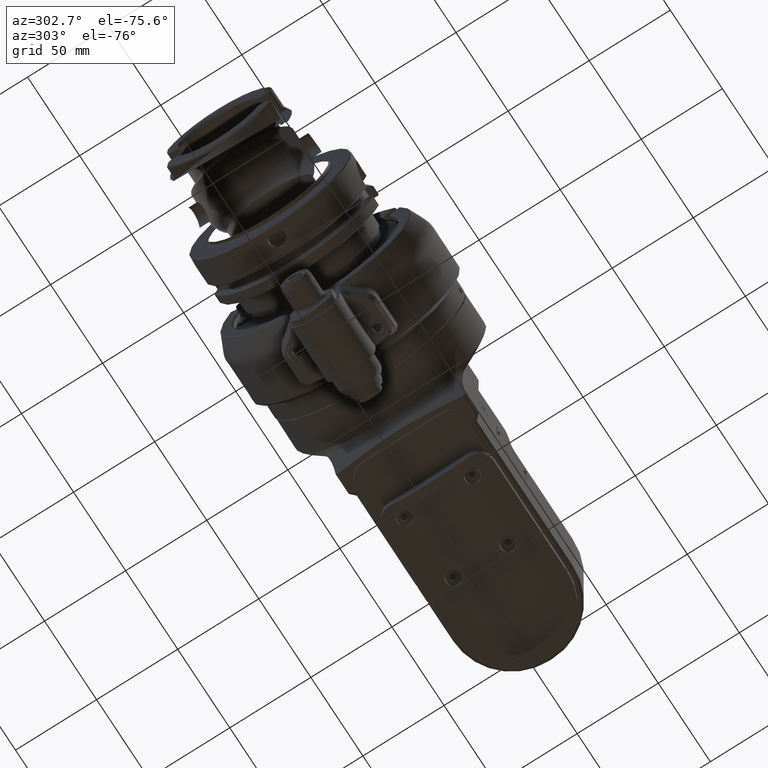
[diagram: clean part render]
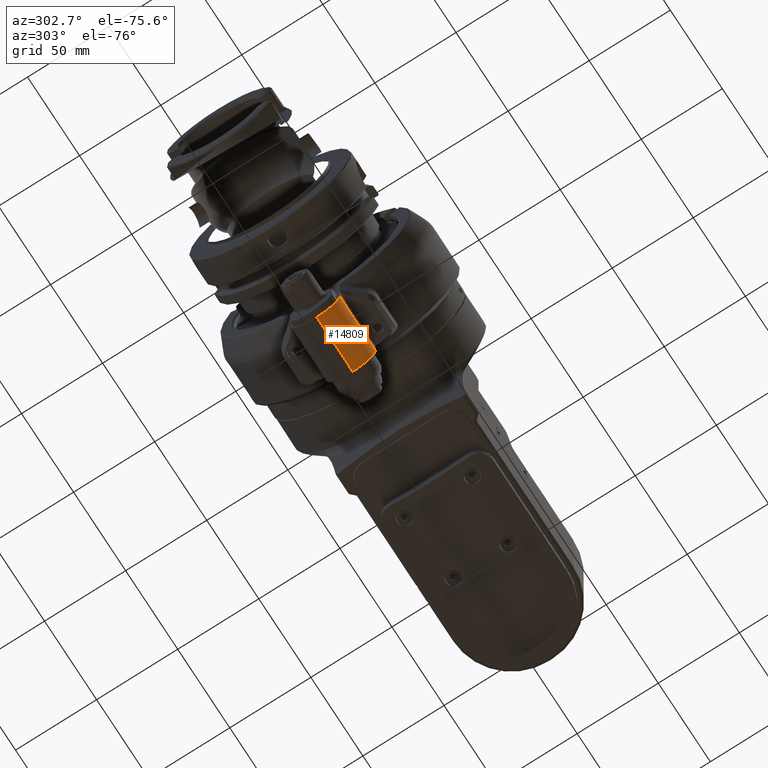
[diagram: same view with one face highlighted and labeled with its STEP entity id]
A machine part, auxiliary view. The second image highlights one B-rep face of the part: STEP entity #14809.
In plain terms, the highlighted cylindrical surface (edge-blend (fillet) strip) has radius 14 mm, axis along (1, -0, 0).
Its self-contained STEP definition (entity closure, byte-faithful):
#634=LINE('',#22126,#1801);
#819=LINE('',#24800,#1986);
#1801=VECTOR('',#17446,34.5);
#1986=VECTOR('',#18297,34.5);
#2963=CYLINDRICAL_SURFACE('',#15966,14.);
#3890=FACE_OUTER_BOUND('',#4765,.T.);
#4765=EDGE_LOOP('',(#11179,#11180,#11181,#11182));
#5566=CIRCLE('',#15599,14.);
#5593=CIRCLE('',#15643,14.);
#6303=VERTEX_POINT('',#21724);
#6304=VERTEX_POINT('',#21726);
#6351=VERTEX_POINT('',#22124);
#6377=VERTEX_POINT('',#22177);
#7899=EDGE_CURVE('',#6303,#6304,#5566,.T.);
#7962=EDGE_CURVE('',#6303,#6351,#634,.T.);
#7988=EDGE_CURVE('',#6377,#6351,#5593,.T.);
#8381=EDGE_CURVE('',#6377,#6304,#819,.T.);
#11179=ORIENTED_EDGE('',*,*,#8381,.T.);
#11180=ORIENTED_EDGE('',*,*,#7899,.F.);
#11181=ORIENTED_EDGE('',*,*,#7962,.T.);
#11182=ORIENTED_EDGE('',*,*,#7988,.F.);
#14809=ADVANCED_FACE('',(#3890),#2963,.T.);
#15599=AXIS2_PLACEMENT_3D('',#21727,#17346,#17347);
#15643=AXIS2_PLACEMENT_3D('',#22179,#17483,#17484);
#15966=AXIS2_PLACEMENT_3D('',#24801,#18298,#18299);
#17346=DIRECTION('center_axis',(0.,-1.,0.));
#17347=DIRECTION('ref_axis',(-1.,0.,0.));
#17446=DIRECTION('',(0.,1.,0.));
#17483=DIRECTION('center_axis',(0.,1.,0.));
#17484=DIRECTION('ref_axis',(0.,0.,-1.));
#18297=DIRECTION('',(0.,-1.,0.));
#18298=DIRECTION('center_axis',(0.,-1.,0.));
#18299=DIRECTION('ref_axis',(0.,0.,-1.));
#21724=CARTESIAN_POINT('',(-15.,7.999999769231,-82.));
#21726=CARTESIAN_POINT('',(-1.,7.999999769231,-96.));
#21727=CARTESIAN_POINT('Origin',(-1.,7.999999769231,-82.));
#22124=CARTESIAN_POINT('',(-15.,42.49999976923,-82.));
#22126=CARTESIAN_POINT('',(-15.,7.999999769231,-82.));
#22177=CARTESIAN_POINT('',(-1.,42.49999976923,-96.));
#22179=CARTESIAN_POINT('Origin',(-1.,42.49999976923,-82.));
#24800=CARTESIAN_POINT('',(-1.,42.49999976923,-96.));
#24801=CARTESIAN_POINT('Origin',(-1.,33.99999976923,-82.));